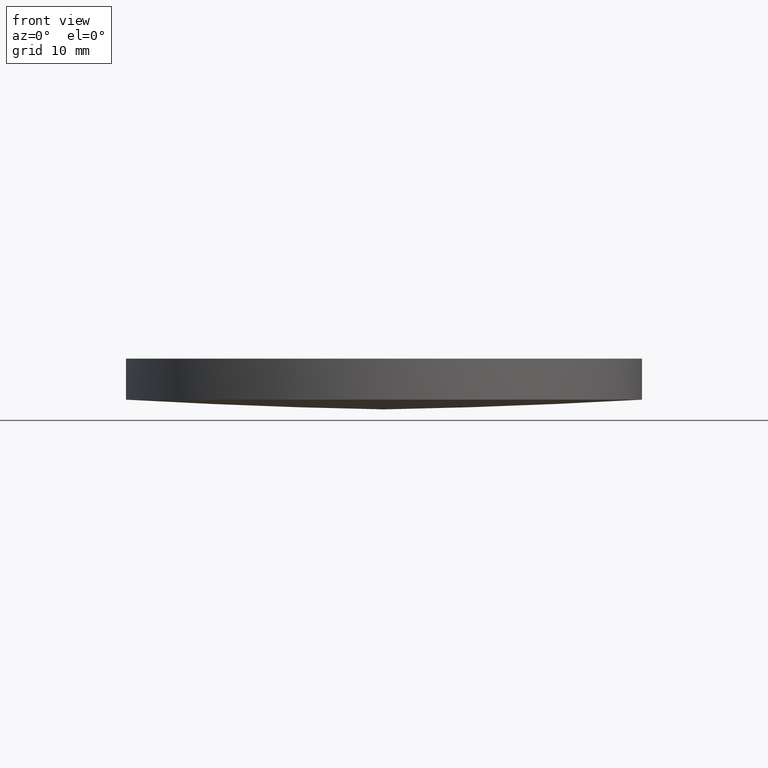
[diagram: clean part render]
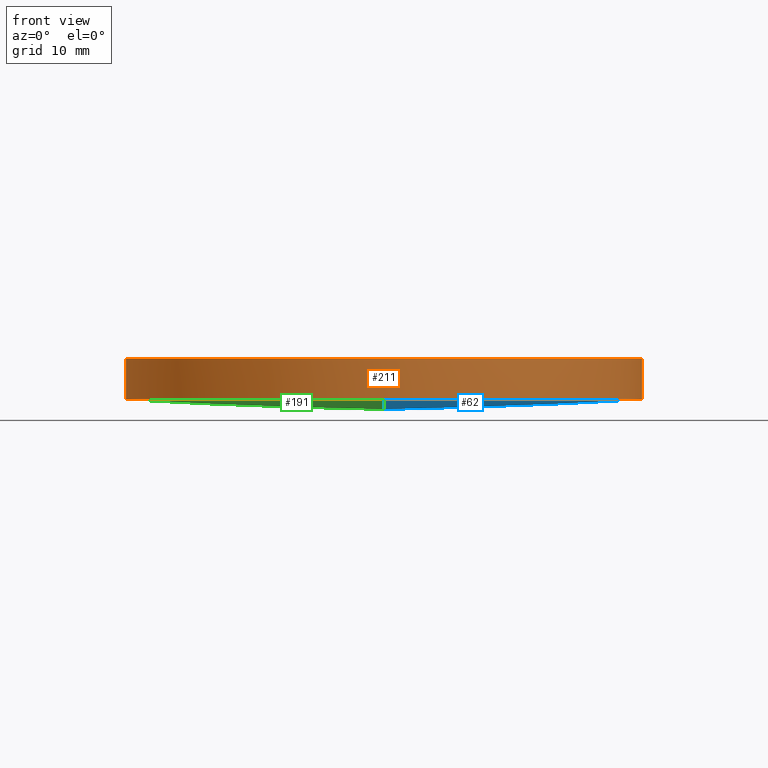
[diagram: same view with three faces highlighted in distinct colors, each labeled with its STEP entity id]
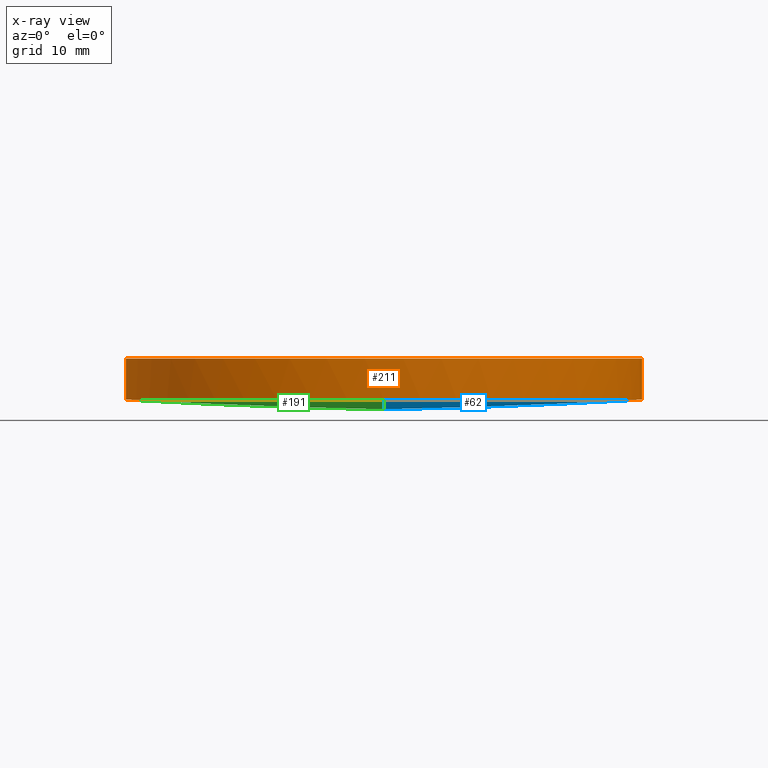
[diagram: x-ray of the same camera — body ghosted, the three highlighted faces saturated]
A machine part, front view with three faces highlighted in distinct colors.
The next image is the same camera in x-ray (body ghosted, the three faces saturated) — at least one of them is partly hidden behind the body in this view.
Their STEP definitions:

[orange] entity #211 — the highlighted cylindrical surface (partial cylindrical patch) has radius 25.4 mm, axis along (0, 0, 1).
#2 = DIRECTION ( 'NONE',  ( 0.0000000000000000000, 0.0000000000000000000, 1.000000000000000000 ) ) ;
#3 = VECTOR ( 'NONE', #109, 1000.000000000000000 ) ;
#18 = CARTESIAN_POINT ( 'NONE',  ( 25.39999999999999900, 4.884981308350691100E-015, 0.9580038127301360200 ) ) ;
#20 = VERTEX_POINT ( 'NONE', #99 ) ;
#23 = CIRCLE ( 'NONE', #133, 25.39999999999999900 ) ;
#39 = CARTESIAN_POINT ( 'NONE',  ( 9.992007221626412800E-016, 4.884981308350691100E-015, 0.9580038127301360200 ) ) ;
#47 = ORIENTED_EDGE ( 'NONE', *, *, #199, .F. ) ;
#54 = DIRECTION ( 'NONE',  ( 1.000000000000000000, 0.0000000000000000000, 0.0000000000000000000 ) ) ;
#58 = DIRECTION ( 'NONE',  ( 1.000000000000000000, 0.0000000000000000000, 0.0000000000000000000 ) ) ;
#59 = CARTESIAN_POINT ( 'NONE',  ( 25.39999999999999900, 4.884981308350691100E-015, 0.9580038127301360200 ) ) ;
#61 = LINE ( 'NONE', #145, #3 ) ;
#65 = VERTEX_POINT ( 'NONE', #192 ) ;
#71 = ORIENTED_EDGE ( 'NONE', *, *, #168, .F. ) ;
#72 = DIRECTION ( 'NONE',  ( -0.0000000000000000000, -0.0000000000000000000, -1.000000000000000000 ) ) ;
#73 = CARTESIAN_POINT ( 'NONE',  ( -1.123740399387198300E-013, -25.40000000000002700, 0.9580038127301410100 ) ) ;
#86 = LINE ( 'NONE', #18, #173 ) ;
#89 = EDGE_CURVE ( 'NONE', #20, #65, #160, .T. ) ;
#94 = EDGE_CURVE ( 'NONE', #233, #20, #86, .T. ) ;
#99 = CARTESIAN_POINT ( 'NONE',  ( 25.39999999999999900, 4.884981308350691100E-015, 4.999999999999999100 ) ) ;
#103 = AXIS2_PLACEMENT_3D ( 'NONE', #217, #138, #123 ) ;
#109 = DIRECTION ( 'NONE',  ( 0.0000000000000000000, 0.0000000000000000000, 1.000000000000000000 ) ) ;
#111 = AXIS2_PLACEMENT_3D ( 'NONE', #182, #72, #200 ) ;
#118 = EDGE_LOOP ( 'NONE', ( #47, #71, #201, #151, #189 ) ) ;
#120 = CARTESIAN_POINT ( 'NONE',  ( -25.39999999999999900, 7.995584178184967200E-015, 0.9580038127301360200 ) ) ;
#122 = VERTEX_POINT ( 'NONE', #73 ) ;
#123 = DIRECTION ( 'NONE',  ( 1.000000000000000000, 0.0000000000000000000, 0.0000000000000000000 ) ) ;
#132 = VERTEX_POINT ( 'NONE', #120 ) ;
#133 = AXIS2_PLACEMENT_3D ( 'NONE', #225, #224, #58 ) ;
#136 = FACE_OUTER_BOUND ( 'NONE', #118, .T. ) ;
#138 = DIRECTION ( 'NONE',  ( -0.0000000000000000000, -0.0000000000000000000, -1.000000000000000000 ) ) ;
#142 = AXIS2_PLACEMENT_3D ( 'NONE', #39, #185, #54 ) ;
#145 = CARTESIAN_POINT ( 'NONE',  ( -25.39999999999999900, 7.995584178184967200E-015, 0.9580038127301360200 ) ) ;
#151 = ORIENTED_EDGE ( 'NONE', *, *, #94, .T. ) ;
#160 = CIRCLE ( 'NONE', #103, 25.39999999999999900 ) ;
#168 = EDGE_CURVE ( 'NONE', #122, #132, #209, .T. ) ;
#171 = CYLINDRICAL_SURFACE ( 'NONE', #142, 25.39999999999999900 ) ;
#173 = VECTOR ( 'NONE', #2, 1000.000000000000000 ) ;
#182 = CARTESIAN_POINT ( 'NONE',  ( 9.992007221626412800E-016, 4.884981308350691100E-015, 0.9580038127301360200 ) ) ;
#185 = DIRECTION ( 'NONE',  ( 0.0000000000000000000, 0.0000000000000000000, 1.000000000000000000 ) ) ;
#189 = ORIENTED_EDGE ( 'NONE', *, *, #89, .T. ) ;
#192 = CARTESIAN_POINT ( 'NONE',  ( -25.39999999999999900, 7.995584178184967200E-015, 4.999999999999999100 ) ) ;
#199 = EDGE_CURVE ( 'NONE', #132, #65, #61, .T. ) ;
#200 = DIRECTION ( 'NONE',  ( 1.000000000000000000, 0.0000000000000000000, 0.0000000000000000000 ) ) ;
#201 = ORIENTED_EDGE ( 'NONE', *, *, #208, .F. ) ;
#208 = EDGE_CURVE ( 'NONE', #233, #122, #23, .T. ) ;
#209 = CIRCLE ( 'NONE', #111, 25.39999999999999900 ) ;
#211 = ADVANCED_FACE ( 'NONE', ( #136 ), #171, .T. ) ;
#217 = CARTESIAN_POINT ( 'NONE',  ( 9.992007221626412800E-016, 4.884981308350691100E-015, 4.999999999999999100 ) ) ;
#224 = DIRECTION ( 'NONE',  ( -0.0000000000000000000, -0.0000000000000000000, -1.000000000000000000 ) ) ;
#225 = CARTESIAN_POINT ( 'NONE',  ( 9.992007221626412800E-016, 4.884981308350691100E-015, 0.9580038127301360200 ) ) ;
#233 = VERTEX_POINT ( 'NONE', #59 ) ;

[blue] entity #62 — the highlighted face is a freeform B-spline surface patch.
#5 = ORIENTED_EDGE ( 'NONE', *, *, #208, .T. ) ;
#23 = CIRCLE ( 'NONE', #133, 25.39999999999999900 ) ;
#30 = CARTESIAN_POINT ( 'NONE',  ( -1.014902637567881100E-013, 8.584722755512789400, -0.3276764864876560700 ) ) ;
#32 = CARTESIAN_POINT ( 'NONE',  ( -1.074086461654604000E-013, -8.584722755512723700, -0.3276764864876584600 ) ) ;
#33 = CARTESIAN_POINT ( 'NONE',  ( 8.502774397849192300, -25.70421176713262300, 0.9811226337366697500 ) ) ;
#35 = DIRECTION ( 'NONE',  ( 1.000000000000000000, 8.881784197001252300E-016, 0.0000000000000000000 ) ) ;
#38 = ORIENTED_EDGE ( 'NONE', *, *, #45, .T. ) ;
#42 = ORIENTED_EDGE ( 'NONE', *, *, #77, .T. ) ;
#43 = VERTEX_POINT ( 'NONE', #135 ) ;
#44 = CARTESIAN_POINT ( 'NONE',  ( 25.47776166552035400, 25.70421176713266900, 1.947830494797017500 ) ) ;
#45 = EDGE_CURVE ( 'NONE', #122, #43, #230, .T. ) ;
#46 = CARTESIAN_POINT ( 'NONE',  ( 25.57693894049765900, -8.584722755512730800, 0.6427944779652738900 ) ) ;
#48 = CARTESIAN_POINT ( 'NONE',  ( 17.06560842586069200, 8.584722755512782300, -0.004031016492933363500 ) ) ;
#58 = DIRECTION ( 'NONE',  ( 1.000000000000000000, 0.0000000000000000000, 0.0000000000000000000 ) ) ;
#59 = CARTESIAN_POINT ( 'NONE',  ( 25.39999999999999900, 4.884981308350691100E-015, 0.9580038127301360200 ) ) ;
#62 = ADVANCED_FACE ( 'NONE', ( #110 ), #92, .T. ) ;
#64 = AXIS2_PLACEMENT_3D ( 'NONE', #178, #157, #35 ) ;
#66 = CARTESIAN_POINT ( 'NONE',  ( -9.474325511732668600E-014, 25.70421176713268000, 0.9811226337366751900 ) ) ;
#67 = CARTESIAN_POINT ( 'NONE',  ( 25.57693894049766200, 8.584722755512780500, 0.6427944779652762200 ) ) ;
#68 = EDGE_LOOP ( 'NONE', ( #5, #38, #42 ) ) ;
#69 = CARTESIAN_POINT ( 'NONE',  ( 1.136868377216160000E-013, 5.684341886080800200E-014, 337.1999999999999900 ) ) ;
#73 = CARTESIAN_POINT ( 'NONE',  ( -1.123740399387198300E-013, -25.40000000000002700, 0.9580038127301410100 ) ) ;
#77 = EDGE_CURVE ( 'NONE', #43, #233, #220, .T. ) ;
#85 = CARTESIAN_POINT ( 'NONE',  ( 25.47776166552033300, -25.70421176713262700, 1.947830494797017500 ) ) ;
#92 =( BOUNDED_SURFACE ( )  B_SPLINE_SURFACE ( 3, 3, ( 
 ( #177, #33, #100, #85 ),
 ( #32, #153, #234, #46 ),
 ( #30, #175, #48, #67 ),
 ( #66, #134, #195, #44 ) ),
 .UNSPECIFIED., .F., .F., .F. ) 
 B_SPLINE_SURFACE_WITH_KNOTS ( ( 4, 4 ),
 ( 4, 4 ),
 ( 0.0000000000000000000, 1.000000000000000000 ),
 ( 0.0000000000000000000, 1.000000000000000000 ),
 .UNSPECIFIED. ) 
 GEOMETRIC_REPRESENTATION_ITEM ( )  RATIONAL_B_SPLINE_SURFACE ( (
 ( 1.000000000000000000, 0.9995206220238213000, 0.9995206220238213000, 1.000000000000000000),
 ( 0.9980602557656450500, 0.9975818076601317100, 0.9975818076601317100, 0.9980602557656450500),
 ( 0.9980602557656450500, 0.9975818076601317100, 0.9975818076601317100, 0.9980602557656450500),
 ( 1.000000000000000000, 0.9995206220238213000, 0.9995206220238213000, 1.000000000000000000) ) ) 
 REPRESENTATION_ITEM ( '' )  SURFACE ( )  );
#100 = CARTESIAN_POINT ( 'NONE',  ( 16.99943473152438100, -25.70421176713262700, 1.303513134329175700 ) ) ;
#110 = FACE_OUTER_BOUND ( 'NONE', #68, .T. ) ;
#122 = VERTEX_POINT ( 'NONE', #73 ) ;
#133 = AXIS2_PLACEMENT_3D ( 'NONE', #225, #224, #58 ) ;
#134 = CARTESIAN_POINT ( 'NONE',  ( 8.502774397849208300, 25.70421176713268400, 0.9811226337366697500 ) ) ;
#135 = CARTESIAN_POINT ( 'NONE',  ( -9.486305939089213800E-014, 25.40000000000008700, 0.9580038127301410100 ) ) ;
#139 = AXIS2_PLACEMENT_3D ( 'NONE', #69, #190, #197 ) ;
#153 = CARTESIAN_POINT ( 'NONE',  ( 8.535873145125210100, -8.584722755512725500, -0.3276764864876639000 ) ) ;
#157 = DIRECTION ( 'NONE',  ( -0.0000000000000000000, -0.0000000000000000000, -1.000000000000000000 ) ) ;
#175 = CARTESIAN_POINT ( 'NONE',  ( 8.535873145125215400, 8.584722755512784100, -0.3276764864876615100 ) ) ;
#177 = CARTESIAN_POINT ( 'NONE',  ( -1.124639618988818800E-013, -25.70421176713261600, 0.9811226337366751900 ) ) ;
#178 = CARTESIAN_POINT ( 'NONE',  ( 9.992007221626412800E-016, 4.884981308350691100E-015, 0.9580038127301360200 ) ) ;
#190 = DIRECTION ( 'NONE',  ( 1.000000000000000000, -3.447043414926700000E-016, -6.462767585563399900E-016 ) ) ;
#195 = CARTESIAN_POINT ( 'NONE',  ( 16.99943473152439900, 25.70421176713268000, 1.303513134329175500 ) ) ;
#197 = DIRECTION ( 'NONE',  ( -3.447043414926702500E-016, -1.000000000000000000, -3.292476348235933000E-016 ) ) ;
#208 = EDGE_CURVE ( 'NONE', #233, #122, #23, .T. ) ;
#220 = CIRCLE ( 'NONE', #64, 25.39999999999999900 ) ;
#224 = DIRECTION ( 'NONE',  ( -0.0000000000000000000, -0.0000000000000000000, -1.000000000000000000 ) ) ;
#225 = CARTESIAN_POINT ( 'NONE',  ( 9.992007221626412800E-016, 4.884981308350691100E-015, 0.9580038127301360200 ) ) ;
#230 = CIRCLE ( 'NONE', #139, 337.1999999999999900 ) ;
#233 = VERTEX_POINT ( 'NONE', #59 ) ;
#234 = CARTESIAN_POINT ( 'NONE',  ( 17.06560842586069200, -8.584722755512727200, -0.004031016492935858000 ) ) ;

[green] entity #191 — the highlighted face is a freeform B-spline surface patch.
#1 = CARTESIAN_POINT ( 'NONE',  ( -1.873501354054951700E-013, -8.584722755512725500, -0.3276764864876301500 ) ) ;
#7 = DIRECTION ( 'NONE',  ( -0.0000000000000000000, -0.0000000000000000000, -1.000000000000000000 ) ) ;
#11 = CIRCLE ( 'NONE', #179, 25.39999999999999900 ) ;
#21 = CARTESIAN_POINT ( 'NONE',  ( -25.57693894049751600, -8.584722755512716600, 0.6427944779652767800 ) ) ;
#41 = CARTESIAN_POINT ( 'NONE',  ( 9.992007221626412800E-016, 4.884981308350691100E-015, 0.9580038127301360200 ) ) ;
#43 = VERTEX_POINT ( 'NONE', #135 ) ;
#45 = EDGE_CURVE ( 'NONE', #122, #43, #230, .T. ) ;
#51 = CARTESIAN_POINT ( 'NONE',  ( -25.47776166552019800, -25.70421176713260900, 1.947830494797020400 ) ) ;
#55 = CARTESIAN_POINT ( 'NONE',  ( -8.502774397849329100, 25.70421176713268700, 0.9811226337367113800 ) ) ;
#69 = CARTESIAN_POINT ( 'NONE',  ( 1.136868377216160000E-013, 5.684341886080800200E-014, 337.1999999999999900 ) ) ;
#72 = DIRECTION ( 'NONE',  ( -0.0000000000000000000, -0.0000000000000000000, -1.000000000000000000 ) ) ;
#73 = CARTESIAN_POINT ( 'NONE',  ( -1.123740399387198300E-013, -25.40000000000002700, 0.9580038127301410100 ) ) ;
#76 = CARTESIAN_POINT ( 'NONE',  ( -25.57693894049750600, 8.584722755512796500, 0.6427944779652790000 ) ) ;
#84 = ORIENTED_EDGE ( 'NONE', *, *, #45, .F. ) ;
#90 = CARTESIAN_POINT ( 'NONE',  ( -16.99943473152439200, -25.70421176713261600, 1.303513134329187900 ) ) ;
#91 = CARTESIAN_POINT ( 'NONE',  ( -8.535873145125346900, 8.584722755512789400, -0.3276764864876200400 ) ) ;
#101 = CARTESIAN_POINT ( 'NONE',  ( -8.535873145125357600, -8.584722755512720100, -0.3276764864876225400 ) ) ;
#105 = FACE_OUTER_BOUND ( 'NONE', #165, .T. ) ;
#107 = DIRECTION ( 'NONE',  ( 1.000000000000000000, 0.0000000000000000000, 0.0000000000000000000 ) ) ;
#111 = AXIS2_PLACEMENT_3D ( 'NONE', #182, #72, #200 ) ;
#119 = CARTESIAN_POINT ( 'NONE',  ( -8.502774397849348600, -25.70421176713262000, 0.9811226337367113800 ) ) ;
#120 = CARTESIAN_POINT ( 'NONE',  ( -25.39999999999999900, 7.995584178184967200E-015, 0.9580038127301360200 ) ) ;
#122 = VERTEX_POINT ( 'NONE', #73 ) ;
#125 = CARTESIAN_POINT ( 'NONE',  ( -16.99943473152437100, 25.70421176713269100, 1.303513134329188100 ) ) ;
#132 = VERTEX_POINT ( 'NONE', #120 ) ;
#135 = CARTESIAN_POINT ( 'NONE',  ( -9.486305939089213800E-014, 25.40000000000008700, 0.9580038127301410100 ) ) ;
#139 = AXIS2_PLACEMENT_3D ( 'NONE', #69, #190, #197 ) ;
#161 = CARTESIAN_POINT ( 'NONE',  ( -25.47776166552018000, 25.70421176713268700, 1.947830494797020400 ) ) ;
#165 = EDGE_LOOP ( 'NONE', ( #84, #193, #235 ) ) ;
#168 = EDGE_CURVE ( 'NONE', #122, #132, #209, .T. ) ;
#179 = AXIS2_PLACEMENT_3D ( 'NONE', #41, #7, #107 ) ;
#182 = CARTESIAN_POINT ( 'NONE',  ( 9.992007221626412800E-016, 4.884981308350691100E-015, 0.9580038127301360200 ) ) ;
#190 = DIRECTION ( 'NONE',  ( 1.000000000000000000, -3.447043414926700000E-016, -6.462767585563399900E-016 ) ) ;
#191 = ADVANCED_FACE ( 'NONE', ( #105 ), #194, .T. ) ;
#193 = ORIENTED_EDGE ( 'NONE', *, *, #168, .T. ) ;
#194 =( BOUNDED_SURFACE ( )  B_SPLINE_SURFACE ( 3, 3, ( 
 ( #51, #90, #119, #221 ),
 ( #21, #202, #101, #1 ),
 ( #76, #205, #91, #203 ),
 ( #161, #125, #55, #222 ) ),
 .UNSPECIFIED., .F., .F., .T. ) 
 B_SPLINE_SURFACE_WITH_KNOTS ( ( 4, 4 ),
 ( 4, 4 ),
 ( 0.0000000000000000000, 1.000000000000000000 ),
 ( 0.0000000000000000000, 1.000000000000000000 ),
 .UNSPECIFIED. ) 
 GEOMETRIC_REPRESENTATION_ITEM ( )  RATIONAL_B_SPLINE_SURFACE ( (
 ( 1.000000000000000000, 0.9995206220238213000, 0.9995206220238213000, 1.000000000000000000),
 ( 0.9980602557656450500, 0.9975818076601317100, 0.9975818076601317100, 0.9980602557656450500),
 ( 0.9980602557656450500, 0.9975818076601317100, 0.9975818076601317100, 0.9980602557656450500),
 ( 1.000000000000000000, 0.9995206220238213000, 0.9995206220238213000, 1.000000000000000000) ) ) 
 REPRESENTATION_ITEM ( '' )  SURFACE ( )  );
#196 = EDGE_CURVE ( 'NONE', #132, #43, #11, .T. ) ;
#197 = DIRECTION ( 'NONE',  ( -3.447043414926702500E-016, -1.000000000000000000, -3.292476348235933000E-016 ) ) ;
#200 = DIRECTION ( 'NONE',  ( 1.000000000000000000, 0.0000000000000000000, 0.0000000000000000000 ) ) ;
#202 = CARTESIAN_POINT ( 'NONE',  ( -17.06560842586068500, -8.584722755512718400, -0.004031016492923715800 ) ) ;
#203 = CARTESIAN_POINT ( 'NONE',  ( -1.769417945496343500E-013, 8.584722755512787600, -0.3276764864876275400 ) ) ;
#205 = CARTESIAN_POINT ( 'NONE',  ( -17.06560842586067700, 8.584722755512791200, -0.004031016492921438200 ) ) ;
#209 = CIRCLE ( 'NONE', #111, 25.39999999999999900 ) ;
#221 = CARTESIAN_POINT ( 'NONE',  ( -1.908195823574487800E-013, -25.70421176713262000, 0.9811226337367038300 ) ) ;
#222 = CARTESIAN_POINT ( 'NONE',  ( -1.700029006457271000E-013, 25.70421176713267600, 0.9811226337367038300 ) ) ;
#230 = CIRCLE ( 'NONE', #139, 337.1999999999999900 ) ;
#235 = ORIENTED_EDGE ( 'NONE', *, *, #196, .T. ) ;